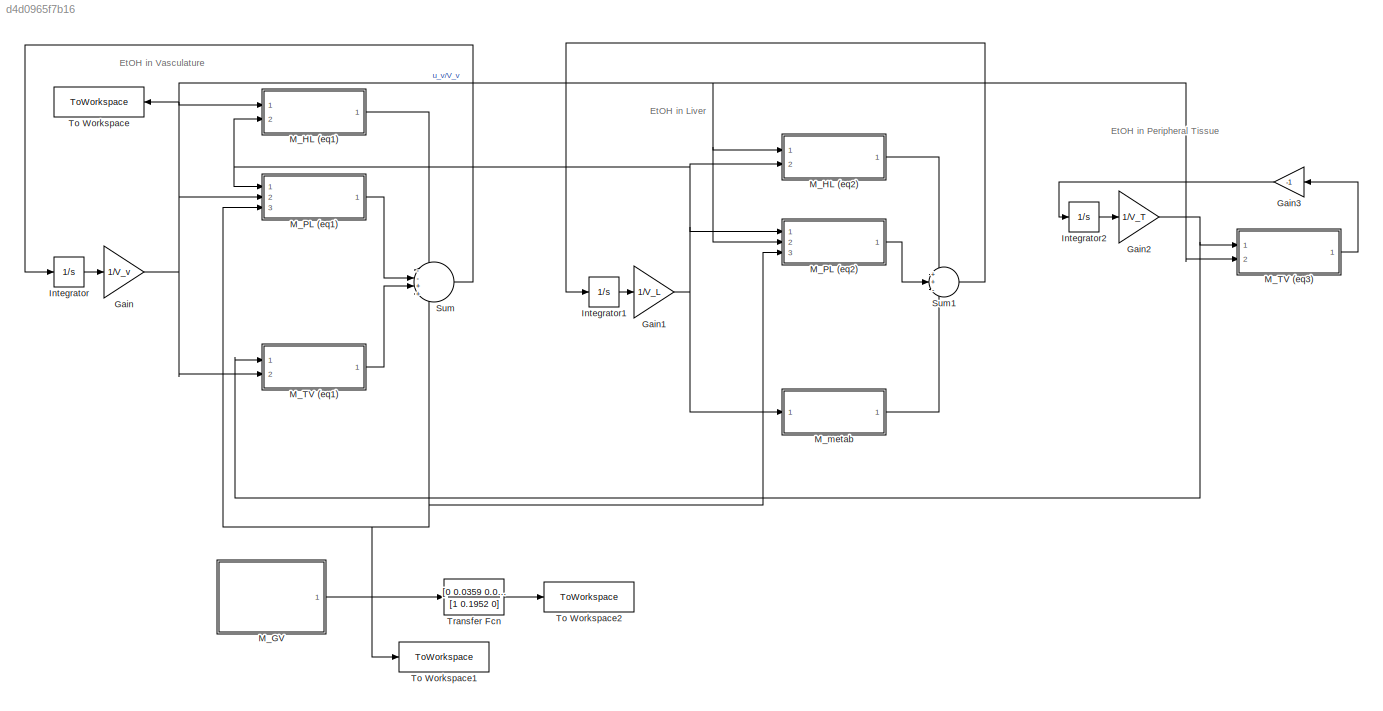
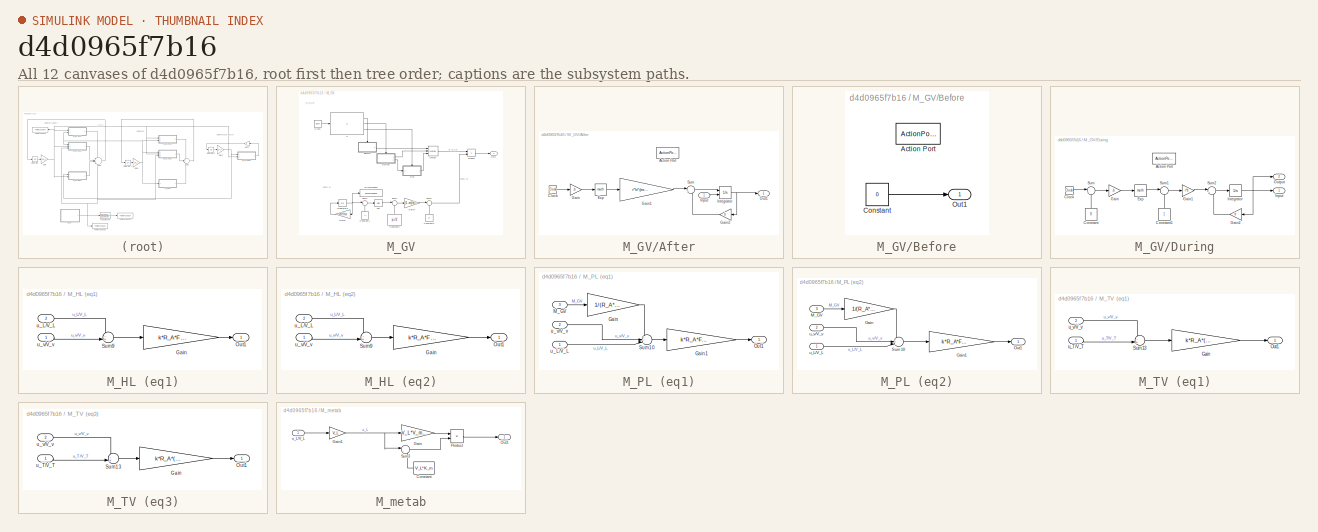
[diagram: thumbnail index - all 12 canvases of the model, root first then tree order]
MODEL slx_d4d0965f7b16
KIND model
CONFIG AbsTol = auto
CONFIG EnableMultiTasking = off
CONFIG FixedStep = 10
CONFIG MaxStep = auto
CONFIG MinStep = auto
CONFIG RelTol = 1e-3
CONFIG SampleTimeConstraint = Unconstrained
CONFIG SolverName = FixedStepAuto
CONFIG StartTime = 0.0
CONFIG StopTime = 10000
BLOCK [Gain] Gain
  Gain = 1/V_v
BLOCK [Gain] Gain1
  Gain = 1/V_L
BLOCK [Gain] Gain2
  Gain = 1/V_T
BLOCK [Gain] Gain3
  Gain = -1
  NameLocation = top
BLOCK [Integrator] Integrator
  Ports = [1, 1]
BLOCK [Integrator] Integrator1
  Ports = [1, 1]
BLOCK [Integrator] Integrator2
  Ports = [1, 1]
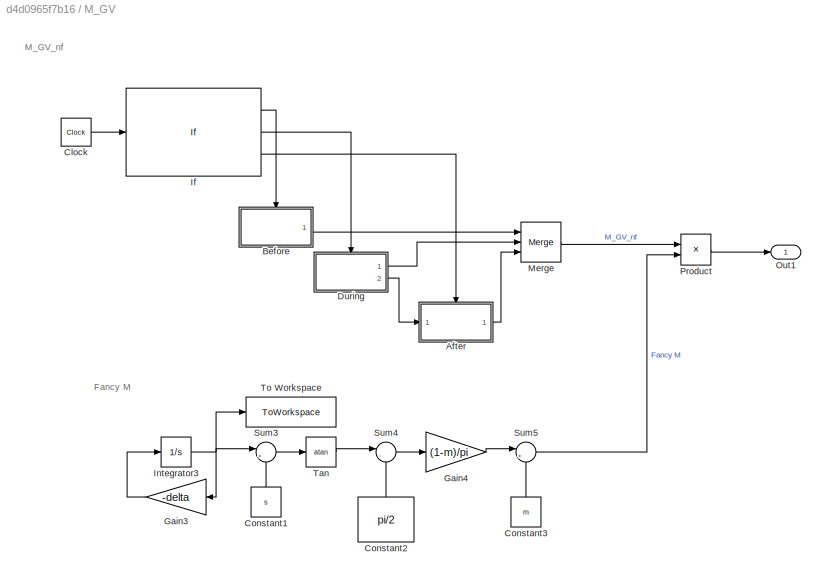
BLOCK [SubSystem] M_GV
  Ports = [0, 1]
  RequestExecContextInheritance = off
BLOCK [SubSystem] M_GV/After
  Ports = [1, 1, 0, 0, 0, 0, 0, 1]
  RequestExecContextInheritance = off
  TreatAsAtomicUnit = on
BLOCK [ActionPort] M_GV/After/Action Port
  ActionPortLabel = else
BLOCK [Clock] M_GV/After/Clock
BLOCK [Math] M_GV/After/Exp
  Ports = [1, 1]
BLOCK [Gain] M_GV/After/Gain
  Gain = -b
BLOCK [Gain] M_GV/After/Gain1
  Gain = r*b*(exp(b*E)-exp(b*S))
BLOCK [Gain] M_GV/After/Gain2
  Gain = b
  NameLocation = top
BLOCK [Inport] M_GV/After/Input
BLOCK [Integrator] M_GV/After/Integrator
  InitialConditionSource = external
  Ports = [2, 1]
BLOCK [Outport] M_GV/After/Out1
BLOCK [Sum] M_GV/After/Sum
  Inputs = |+-
  Ports = [2, 1]
BLOCK [SubSystem] M_GV/Before
  Ports = [0, 1, 0, 0, 0, 0, 0, 1]
  RequestExecContextInheritance = off
  TreatAsAtomicUnit = on
BLOCK [ActionPort] M_GV/Before/Action Port
  ActionPortLabel = if(u1 < 0)
BLOCK [Constant] M_GV/Before/Constant
  Value = 0
BLOCK [Outport] M_GV/Before/Out1
BLOCK [Clock] M_GV/Clock
BLOCK [Constant] M_GV/Constant1
  NameLocation = right
  Value = s
BLOCK [Constant] M_GV/Constant2
  NameLocation = right
  Value = pi/2
BLOCK [Constant] M_GV/Constant3
  NameLocation = right
  Value = m
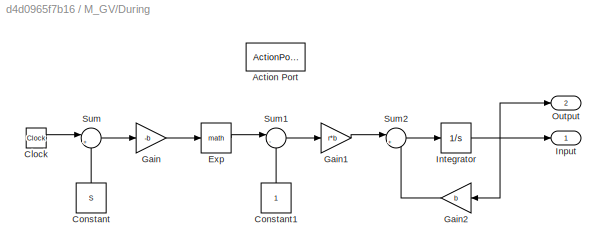
BLOCK [SubSystem] M_GV/During
  Ports = [0, 2, 0, 0, 0, 0, 0, 1]
  RequestExecContextInheritance = off
  TreatAsAtomicUnit = on
BLOCK [ActionPort] M_GV/During/Action Port
  ActionPortLabel = elseif(S <= u1 & u1 <= E)
BLOCK [Clock] M_GV/During/Clock
BLOCK [Constant] M_GV/During/Constant
  NameLocation = right
  Value = S
BLOCK [Constant] M_GV/During/Constant1
  NameLocation = right
BLOCK [Math] M_GV/During/Exp
  Ports = [1, 1]
BLOCK [Gain] M_GV/During/Gain
  Gain = -b
BLOCK [Gain] M_GV/During/Gain1
  Gain = r*b
BLOCK [Gain] M_GV/During/Gain2
  Gain = b
  NameLocation = top
BLOCK [Outport] M_GV/During/Input
BLOCK [Integrator] M_GV/During/Integrator
  Ports = [1, 1]
BLOCK [Outport] M_GV/During/Output
  Port = 2
BLOCK [Sum] M_GV/During/Sum
  Inputs = |+-
  Ports = [2, 1]
BLOCK [Sum] M_GV/During/Sum1
  Inputs = |-+
  Ports = [2, 1]
BLOCK [Sum] M_GV/During/Sum2
  Inputs = |+-
  Ports = [2, 1]
BLOCK [Gain] M_GV/Gain3
  Gain = -delta
  NameLocation = top
BLOCK [Gain] M_GV/Gain4
  Gain = (1-m)/pi
BLOCK [If] M_GV/If
  ElseIfExpressions = S <= u1 & u1 <= E
  IfExpression = u1 < 0
  Ports = [1, 3]
BLOCK [Integrator] M_GV/Integrator3
  Ports = [1, 1]
BLOCK [Merge] M_GV/Merge
  Inputs = 3
  Ports = [3, 1]
BLOCK [Outport] M_GV/Out1
BLOCK [Product] M_GV/Product
  Ports = [2, 1]
BLOCK [Sum] M_GV/Sum3
  Inputs = |+-
  Ports = [2, 1]
BLOCK [Sum] M_GV/Sum4
  Inputs = |-+
  Ports = [2, 1]
BLOCK [Sum] M_GV/Sum5
  Inputs = |++
  Ports = [2, 1]
BLOCK [Trigonometry] M_GV/Tan
  Operator = atan
  Ports = [1, 1]
BLOCK [ToWorkspace] M_GV/To Workspace
  FixptAsFi = on
  MaxDataPoints = inf
  Ports = [1]
  SampleTime = -1
  SaveFormat = Timeseries
  VariableName = food
BLOCK [SubSystem] M_HL (eq1)
  Ports = [2, 1]
  RequestExecContextInheritance = off
BLOCK [Gain] M_HL (eq1)/Gain
  Gain = k*R_A*F_L*(1-F_P)
BLOCK [Outport] M_HL (eq1)/Out1
BLOCK [Sum] M_HL (eq1)/Sum9
  Inputs = -+|
  Ports = [2, 1]
BLOCK [Inport] M_HL (eq1)/u_L//V_L
  Port = 2
BLOCK [Inport] M_HL (eq1)/u_v//V_v
BLOCK [SubSystem] M_HL (eq2)
  Ports = [2, 1]
  RequestExecContextInheritance = off
BLOCK [Gain] M_HL (eq2)/Gain
  Gain = k*R_A*F_L*(1-F_P)
BLOCK [Outport] M_HL (eq2)/Out1
BLOCK [Sum] M_HL (eq2)/Sum9
  Inputs = -+|
  Ports = [2, 1]
BLOCK [Inport] M_HL (eq2)/u_L//V_L
  Port = 2
BLOCK [Inport] M_HL (eq2)/u_v//V_v
BLOCK [SubSystem] M_PL (eq1)
  Ports = [3, 1]
  RequestExecContextInheritance = off
BLOCK [Gain] M_PL (eq1)/Gain
  Gain = 1/(R_A*F_L*F_P)
BLOCK [Gain] M_PL (eq1)/Gain1
  Gain = k*R_A*F_L*F_P
BLOCK [Inport] M_PL (eq1)/M_GV
  Port = 3
BLOCK [Outport] M_PL (eq1)/Out1
BLOCK [Sum] M_PL (eq1)/Sum10
  Inputs = ++-|
  Ports = [3, 1]
BLOCK [Inport] M_PL (eq1)/u_L//V_L
BLOCK [Inport] M_PL (eq1)/u_v//V_v
  Port = 2
BLOCK [SubSystem] M_PL (eq2)
  Ports = [3, 1]
  RequestExecContextInheritance = off
BLOCK [Gain] M_PL (eq2)/Gain
  Gain = 1/(R_A*F_L*F_P)
BLOCK [Gain] M_PL (eq2)/Gain1
  Gain = k*R_A*F_L*F_P
BLOCK [Inport] M_PL (eq2)/M_GV
  Port = 3
BLOCK [Outport] M_PL (eq2)/Out1
BLOCK [Sum] M_PL (eq2)/Sum10
  Inputs = ++-|
  Ports = [3, 1]
BLOCK [Inport] M_PL (eq2)/u_L//V_L
BLOCK [Inport] M_PL (eq2)/u_v//V_v
  Port = 2
BLOCK [SubSystem] M_TV (eq1)
  Ports = [2, 1]
  RequestExecContextInheritance = off
BLOCK [Gain] M_TV (eq1)/Gain
  Gain = k*R_A*(1-F_L)
BLOCK [Outport] M_TV (eq1)/Out1
BLOCK [Sum] M_TV (eq1)/Sum13
  Inputs = -+|
  Ports = [2, 1]
BLOCK [Inport] M_TV (eq1)/u_T//V_T
BLOCK [Inport] M_TV (eq1)/u_v//V_v
  Port = 2
BLOCK [SubSystem] M_TV (eq3)
  Ports = [2, 1]
  RequestExecContextInheritance = off
BLOCK [Gain] M_TV (eq3)/Gain
  Gain = k*R_A*(1-F_L)
BLOCK [Outport] M_TV (eq3)/Out1
BLOCK [Sum] M_TV (eq3)/Sum13
  Inputs = -+|
  Ports = [2, 1]
BLOCK [Inport] M_TV (eq3)/u_T//V_T
BLOCK [Inport] M_TV (eq3)/u_v//V_v
  Port = 2
BLOCK [SubSystem] M_metab
  Ports = [1, 1]
  RequestExecContextInheritance = off
BLOCK [Constant] M_metab/Constant
  Value = V_L*K_m
BLOCK [Gain] M_metab/Gain
  Gain = V_L*V_max
BLOCK [Gain] M_metab/Gain1
  Gain = V_L
BLOCK [Outport] M_metab/Out1
BLOCK [Product] M_metab/Product
  Inputs = */
  Ports = [2, 1]
BLOCK [Sum] M_metab/Sum3
  Inputs = |++
  Ports = [2, 1]
BLOCK [Inport] M_metab/u_L//V_L
BLOCK [Sum] Sum
  Inputs = --++
  Ports = [4, 1]
BLOCK [Sum] Sum1
  Inputs = ++-
  Ports = [3, 1]
BLOCK [ToWorkspace] To Workspace
  FixptAsFi = on
  MaxDataPoints = inf
  NameLocation = top
  Ports = [1]
  SampleTime = -1
  SaveFormat = Timeseries
  VariableName = simout
BLOCK [ToWorkspace] To Workspace1
  FixptAsFi = on
  MaxDataPoints = inf
  Ports = [1]
  SampleTime = -1
  SaveFormat = Timeseries
  VariableName = M_GV
BLOCK [ToWorkspace] To Workspace2
  FixptAsFi = on
  MaxDataPoints = inf
  Ports = [1]
  SampleTime = -1
  SaveFormat = Timeseries
  VariableName = tf_out
BLOCK [TransferFcn] Transfer Fcn
  Denominator = [1 0.1952 0]
  Numerator = [0 0.0359 0.0087]
ANNOTATION (root): EtOH in Liver
ANNOTATION (root): EtOH in Peripheral Tissue
ANNOTATION (root): EtOH in Vasculature
ANNOTATION M_GV: Fancy M
ANNOTATION M_GV: M_GV_nf
NET Gain1:1 -> M_HL (eq1):2, M_HL (eq2):2, M_PL (eq1):1, M_PL (eq2):1, M_metab:1
NET Gain2:1 -> M_TV (eq1):1, M_TV (eq3):1
LINE Gain3:1 -> Integrator2:1
NET Gain:1 -> M_HL (eq1):1, M_HL (eq2):1, M_PL (eq1):2, M_PL (eq2):2, M_TV (eq1):2, M_TV (eq3):2, To Workspace:1
LINE Integrator1:1 -> Gain1:1
LINE Integrator2:1 -> Gain2:1
LINE Integrator:1 -> Gain:1
LINE M_GV/After/Clock:1 -> M_GV/After/Gain:1
LINE M_GV/After/Exp:1 -> M_GV/After/Gain1:1
LINE M_GV/After/Gain1:1 -> M_GV/After/Sum:1
LINE M_GV/After/Gain2:1 -> M_GV/After/Sum:2
LINE M_GV/After/Gain:1 -> M_GV/After/Exp:1
LINE M_GV/After/Input:1 -> M_GV/After/Integrator:2
NET M_GV/After/Integrator:1 -> M_GV/After/Gain2:1, M_GV/After/Out1:1
LINE M_GV/After/Sum:1 -> M_GV/After/Integrator:1
LINE M_GV/After:1 -> M_GV/Merge:3
LINE M_GV/Before/Constant:1 -> M_GV/Before/Out1:1
LINE M_GV/Before:1 -> M_GV/Merge:1
LINE M_GV/Clock:1 -> M_GV/If:1
LINE M_GV/Constant1:1 -> M_GV/Sum3:2
LINE M_GV/Constant2:1 -> M_GV/Sum4:2
LINE M_GV/Constant3:1 -> M_GV/Sum5:2
LINE M_GV/During/Clock:1 -> M_GV/During/Sum:1
LINE M_GV/During/Constant1:1 -> M_GV/During/Sum1:2
LINE M_GV/During/Constant:1 -> M_GV/During/Sum:2
LINE M_GV/During/Exp:1 -> M_GV/During/Sum1:1
LINE M_GV/During/Gain1:1 -> M_GV/During/Sum2:1
LINE M_GV/During/Gain2:1 -> M_GV/During/Sum2:2
LINE M_GV/During/Gain:1 -> M_GV/During/Exp:1
NET M_GV/During/Integrator:1 -> M_GV/During/Gain2:1, M_GV/During/Input:1, M_GV/During/Output:1
LINE M_GV/During/Sum1:1 -> M_GV/During/Gain1:1
LINE M_GV/During/Sum2:1 -> M_GV/During/Integrator:1
LINE M_GV/During/Sum:1 -> M_GV/During/Gain:1
LINE M_GV/During:1 -> M_GV/Merge:2
LINE M_GV/During:2 -> M_GV/After:1
LINE M_GV/Gain3:1 -> M_GV/Integrator3:1
LINE M_GV/Gain4:1 -> M_GV/Sum5:1
LINE M_GV/If:1 -> M_GV/Before:ifaction
LINE M_GV/If:2 -> M_GV/During:ifaction
LINE M_GV/If:3 -> M_GV/After:ifaction
NET M_GV/Integrator3:1 -> M_GV/Gain3:1, M_GV/Sum3:1, M_GV/To Workspace:1
LINE M_GV/Merge:1 -> M_GV/Product:1
LINE M_GV/Product:1 -> M_GV/Out1:1
LINE M_GV/Sum3:1 -> M_GV/Tan:1
LINE M_GV/Sum4:1 -> M_GV/Gain4:1
LINE M_GV/Sum5:1 -> M_GV/Product:2
LINE M_GV/Tan:1 -> M_GV/Sum4:1
NET M_GV:1 -> M_PL (eq1):3, M_PL (eq2):3, Sum:4, To Workspace1:1, Transfer Fcn:1
LINE M_HL (eq1)/Gain:1 -> M_HL (eq1)/Out1:1
LINE M_HL (eq1)/Sum9:1 -> M_HL (eq1)/Gain:1
LINE M_HL (eq1)/u_L//V_L:1 -> M_HL (eq1)/Sum9:1
LINE M_HL (eq1)/u_v//V_v:1 -> M_HL (eq1)/Sum9:2
LINE M_HL (eq1):1 -> Sum:1
LINE M_HL (eq2)/Gain:1 -> M_HL (eq2)/Out1:1
LINE M_HL (eq2)/Sum9:1 -> M_HL (eq2)/Gain:1
LINE M_HL (eq2)/u_L//V_L:1 -> M_HL (eq2)/Sum9:1
LINE M_HL (eq2)/u_v//V_v:1 -> M_HL (eq2)/Sum9:2
LINE M_HL (eq2):1 -> Sum1:1
LINE M_PL (eq1)/Gain1:1 -> M_PL (eq1)/Out1:1
LINE M_PL (eq1)/Gain:1 -> M_PL (eq1)/Sum10:1
LINE M_PL (eq1)/M_GV:1 -> M_PL (eq1)/Gain:1
LINE M_PL (eq1)/Sum10:1 -> M_PL (eq1)/Gain1:1
LINE M_PL (eq1)/u_L//V_L:1 -> M_PL (eq1)/Sum10:3
LINE M_PL (eq1)/u_v//V_v:1 -> M_PL (eq1)/Sum10:2
LINE M_PL (eq1):1 -> Sum:2
LINE M_PL (eq2)/Gain1:1 -> M_PL (eq2)/Out1:1
LINE M_PL (eq2)/Gain:1 -> M_PL (eq2)/Sum10:1
LINE M_PL (eq2)/M_GV:1 -> M_PL (eq2)/Gain:1
LINE M_PL (eq2)/Sum10:1 -> M_PL (eq2)/Gain1:1
LINE M_PL (eq2)/u_L//V_L:1 -> M_PL (eq2)/Sum10:3
LINE M_PL (eq2)/u_v//V_v:1 -> M_PL (eq2)/Sum10:2
LINE M_PL (eq2):1 -> Sum1:2
LINE M_TV (eq1)/Gain:1 -> M_TV (eq1)/Out1:1
LINE M_TV (eq1)/Sum13:1 -> M_TV (eq1)/Gain:1
LINE M_TV (eq1)/u_T//V_T:1 -> M_TV (eq1)/Sum13:2
LINE M_TV (eq1)/u_v//V_v:1 -> M_TV (eq1)/Sum13:1
LINE M_TV (eq1):1 -> Sum:3
LINE M_TV (eq3)/Gain:1 -> M_TV (eq3)/Out1:1
LINE M_TV (eq3)/Sum13:1 -> M_TV (eq3)/Gain:1
LINE M_TV (eq3)/u_T//V_T:1 -> M_TV (eq3)/Sum13:2
LINE M_TV (eq3)/u_v//V_v:1 -> M_TV (eq3)/Sum13:1
LINE M_TV (eq3):1 -> Gain3:1
LINE M_metab/Constant:1 -> M_metab/Sum3:2
NET M_metab/Gain1:1 -> M_metab/Gain:1, M_metab/Sum3:1
LINE M_metab/Gain:1 -> M_metab/Product:1
LINE M_metab/Product:1 -> M_metab/Out1:1
LINE M_metab/Sum3:1 -> M_metab/Product:2
LINE M_metab/u_L//V_L:1 -> M_metab/Gain1:1
LINE M_metab:1 -> Sum1:3
LINE Sum1:1 -> Integrator1:1
LINE Sum:1 -> Integrator:1
LINE Transfer Fcn:1 -> To Workspace2:1
note: NET lines group one-source signal fan-out (src -> all destinations, sorted); 1:1 wires keep LINE
